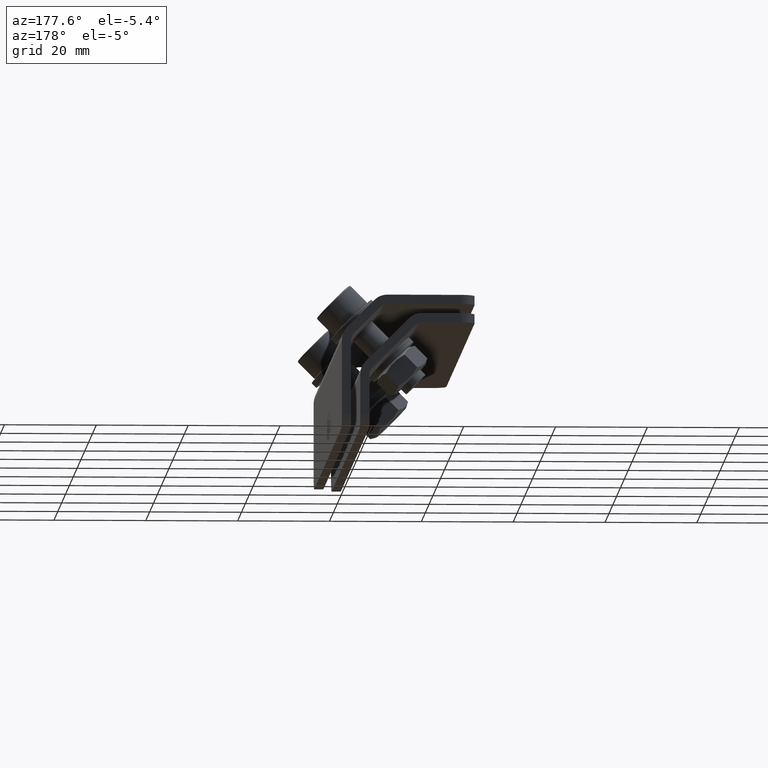
[diagram: clean part render]
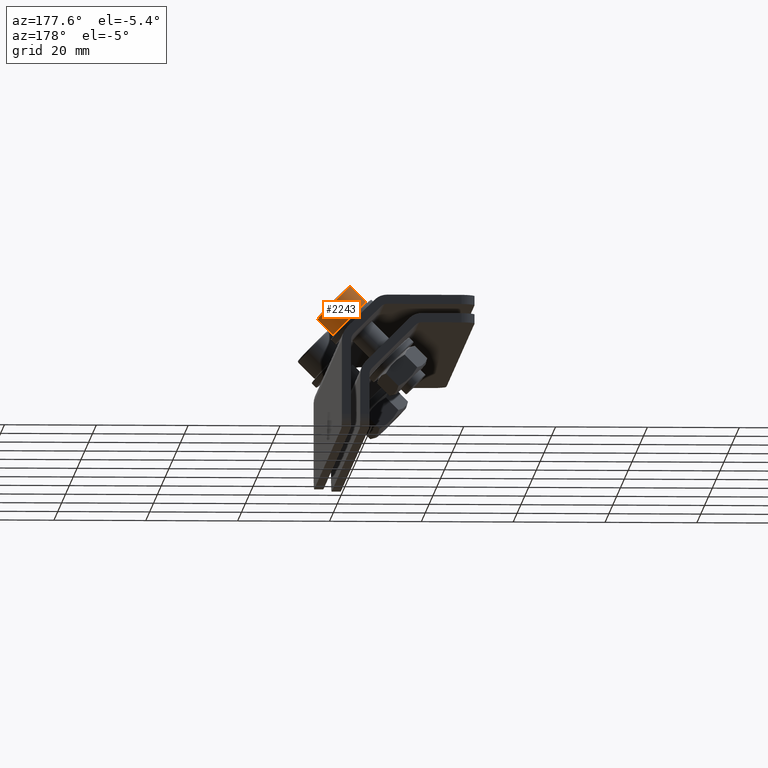
[diagram: same view with one face highlighted and labeled with its STEP entity id]
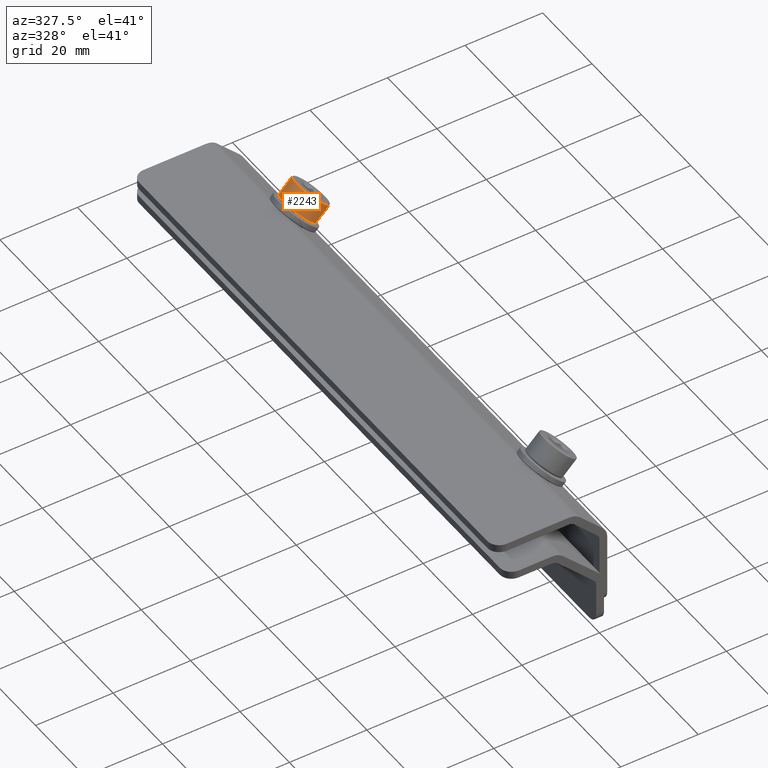
[diagram: same view with one face highlighted and labeled with its STEP entity id]
A machine part, auxiliary view. The second image highlights one B-rep face of the part: STEP entity #2243.
A second angle (auxiliary view) of the same face is appended — the face is thin or edge-on in the first view.
In plain terms, the highlighted cylindrical surface (bore or boss wall) has radius 5.1 mm, axis along (-0.7071, -0, -0.7071).
Its self-contained STEP definition (entity closure, byte-faithful):
#170 = FACE_OUTER_BOUND ( 'NONE', #2990, .T. ) ;
#297 = CARTESIAN_POINT ( 'NONE',  ( 18.92705949974887858, 45.64100158480159308, 169.2286186558475833 ) ) ;
#315 = CARTESIAN_POINT ( 'NONE',  ( 22.50420629302046649, 46.28756298078302223, 165.6514718625760167 ) ) ;
#378 = CIRCLE ( 'NONE', #2437, 5.099999999999990763 ) ;
#443 = ORIENTED_EDGE ( 'NONE', *, *, #3586, .F. ) ;
#512 = DIRECTION ( 'NONE',  ( 0.7014013320140386476, 0.1267767443100849545, -0.7014013320140386476 ) ) ;
#559 = ORIENTED_EDGE ( 'NONE', *, *, #667, .T. ) ;
#667 = EDGE_CURVE ( 'NONE', #3165, #3165, #1351, .T. ) ;
#832 = CYLINDRICAL_SURFACE ( 'NONE', #1305, 5.099999999999990763 ) ;
#956 = DIRECTION ( 'NONE',  ( -0.7014013320140386476, -0.1267767443100849545, 0.7014013320140386476 ) ) ;
#1204 = CARTESIAN_POINT ( 'NONE',  ( 29.54617631410614464, 46.93412437676445137, 165.5391482971184871 ) ) ;
#1305 = AXIS2_PLACEMENT_3D ( 'NONE', #3218, #2538, #512 ) ;
#1337 = EDGE_LOOP ( 'NONE', ( #443 ) ) ;
#1351 = CIRCLE ( 'NONE', #2547, 5.099999999999990763 ) ;
#1664 = CARTESIAN_POINT ( 'NONE',  ( 25.96902952083455318, 46.28756298078302223, 169.1162950903900821 ) ) ;
#1674 = DIRECTION ( 'NONE',  ( -0.7071067811865486830, -2.220446049250313081E-16, -0.7071067811865463515 ) ) ;
#2243 = ADVANCED_FACE ( 'NONE', ( #170, #3917 ), #832, .T. ) ;
#2437 = AXIS2_PLACEMENT_3D ( 'NONE', #315, #1674, #956 ) ;
#2538 = DIRECTION ( 'NONE',  ( -0.7071067811865486830, -2.220446049250313081E-16, -0.7071067811865463515 ) ) ;
#2547 = AXIS2_PLACEMENT_3D ( 'NONE', #1664, #3029, #2702 ) ;
#2702 = DIRECTION ( 'NONE',  ( 0.7014013320140386476, 0.1267767443100849545, -0.7014013320140386476 ) ) ;
#2990 = EDGE_LOOP ( 'NONE', ( #559 ) ) ;
#3029 = DIRECTION ( 'NONE',  ( -0.7071067811865486830, -2.220446049250313081E-16, -0.7071067811865463515 ) ) ;
#3165 = VERTEX_POINT ( 'NONE', #1204 ) ;
#3218 = CARTESIAN_POINT ( 'NONE',  ( 26.18116155519052057, 46.28756298078302223, 169.3284271247460424 ) ) ;
#3321 = VERTEX_POINT ( 'NONE', #297 ) ;
#3586 = EDGE_CURVE ( 'NONE', #3321, #3321, #378, .T. ) ;
#3917 = FACE_OUTER_BOUND ( 'NONE', #1337, .T. ) ;